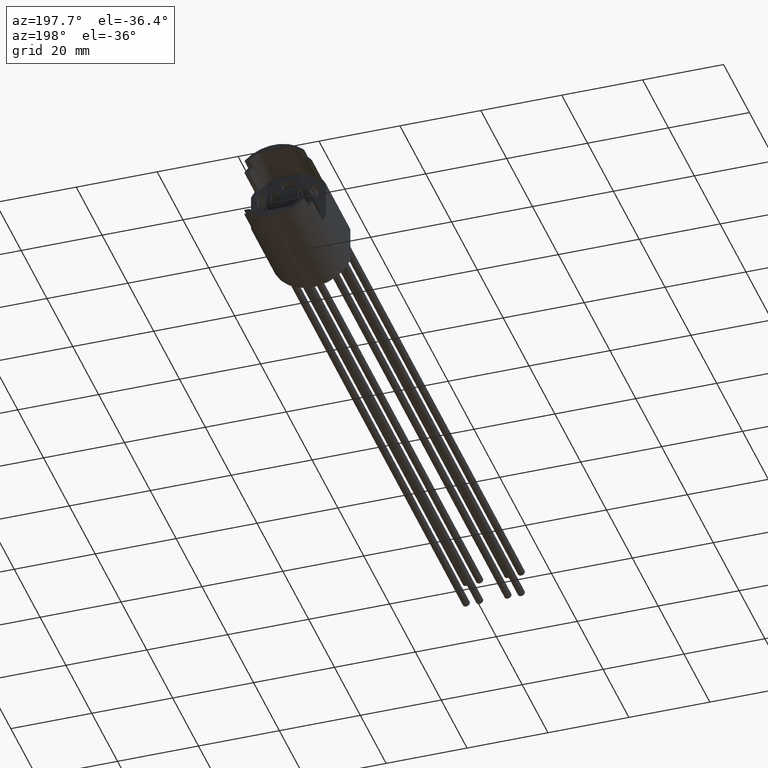
[diagram: clean part render]
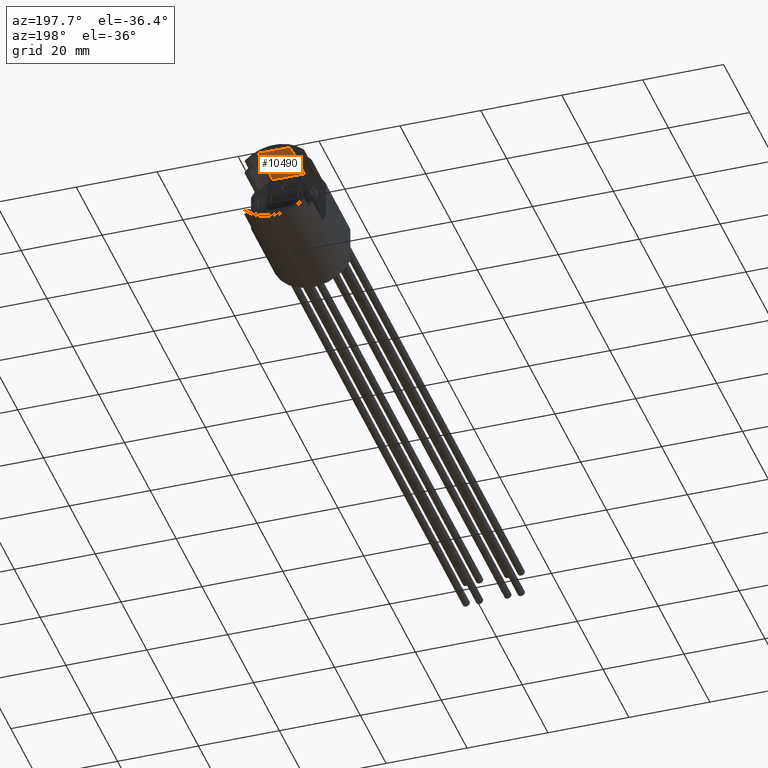
[diagram: same view with one face highlighted and labeled with its STEP entity id]
A machine part, auxiliary view. The second image highlights one B-rep face of the part: STEP entity #10490.
In plain terms, the highlighted planar face has unit normal (-0, 0, 1).
Its self-contained STEP definition (entity closure, byte-faithful):
#702=FACE_OUTER_BOUND('',#1262,.T.);
#1262=EDGE_LOOP('',(#8079,#8080,#8081,#8082));
#2472=LINE('',#16640,#3664);
#2476=LINE('',#16650,#3668);
#2479=LINE('',#16662,#3671);
#2480=LINE('',#16665,#3672);
#3664=VECTOR('',#12821,10.);
#3668=VECTOR('',#12831,10.);
#3671=VECTOR('',#12846,10.);
#3672=VECTOR('',#12851,10.);
#4731=VERTEX_POINT('',#16637);
#4732=VERTEX_POINT('',#16639);
#4735=VERTEX_POINT('',#16649);
#4738=VERTEX_POINT('',#16660);
#5987=EDGE_CURVE('',#4732,#4731,#2472,.T.);
#5992=EDGE_CURVE('',#4732,#4735,#2476,.T.);
#6000=EDGE_CURVE('',#4731,#4738,#2479,.T.);
#6002=EDGE_CURVE('',#4735,#4738,#2480,.T.);
#8079=ORIENTED_EDGE('',*,*,#5992,.F.);
#8080=ORIENTED_EDGE('',*,*,#5987,.T.);
#8081=ORIENTED_EDGE('',*,*,#6000,.T.);
#8082=ORIENTED_EDGE('',*,*,#6002,.F.);
#10079=PLANE('',#11073);
#10490=ADVANCED_FACE('',(#702),#10079,.F.);
#11073=AXIS2_PLACEMENT_3D('',#16672,#12860,#12861);
#12821=DIRECTION('',(0.,-1.,0.));
#12831=DIRECTION('',(-1.,0.,-5.66881337278296E-16));
#12846=DIRECTION('',(-1.,0.,-5.66881337278296E-16));
#12851=DIRECTION('',(0.,-1.,0.));
#12860=DIRECTION('center_axis',(-5.66881337278296E-16,0.,1.));
#12861=DIRECTION('ref_axis',(-1.,0.,-5.66881337278296E-16));
#16637=CARTESIAN_POINT('',(3.91695034433677,0.999999999999999,8.6));
#16639=CARTESIAN_POINT('',(3.91695034433677,12.,8.6));
#16640=CARTESIAN_POINT('',(3.91695034433677,12.,8.6));
#16649=CARTESIAN_POINT('',(-3.91695034433678,12.,8.6));
#16650=CARTESIAN_POINT('',(1.95847517216838,12.,8.6));
#16660=CARTESIAN_POINT('',(-3.91695034433678,0.999999999999999,8.6));
#16662=CARTESIAN_POINT('',(-3.91695034433678,0.999999999999999,8.6));
#16665=CARTESIAN_POINT('',(-3.91695034433678,12.,8.6));
#16672=CARTESIAN_POINT('Origin',(3.91695034433677,12.,8.6));